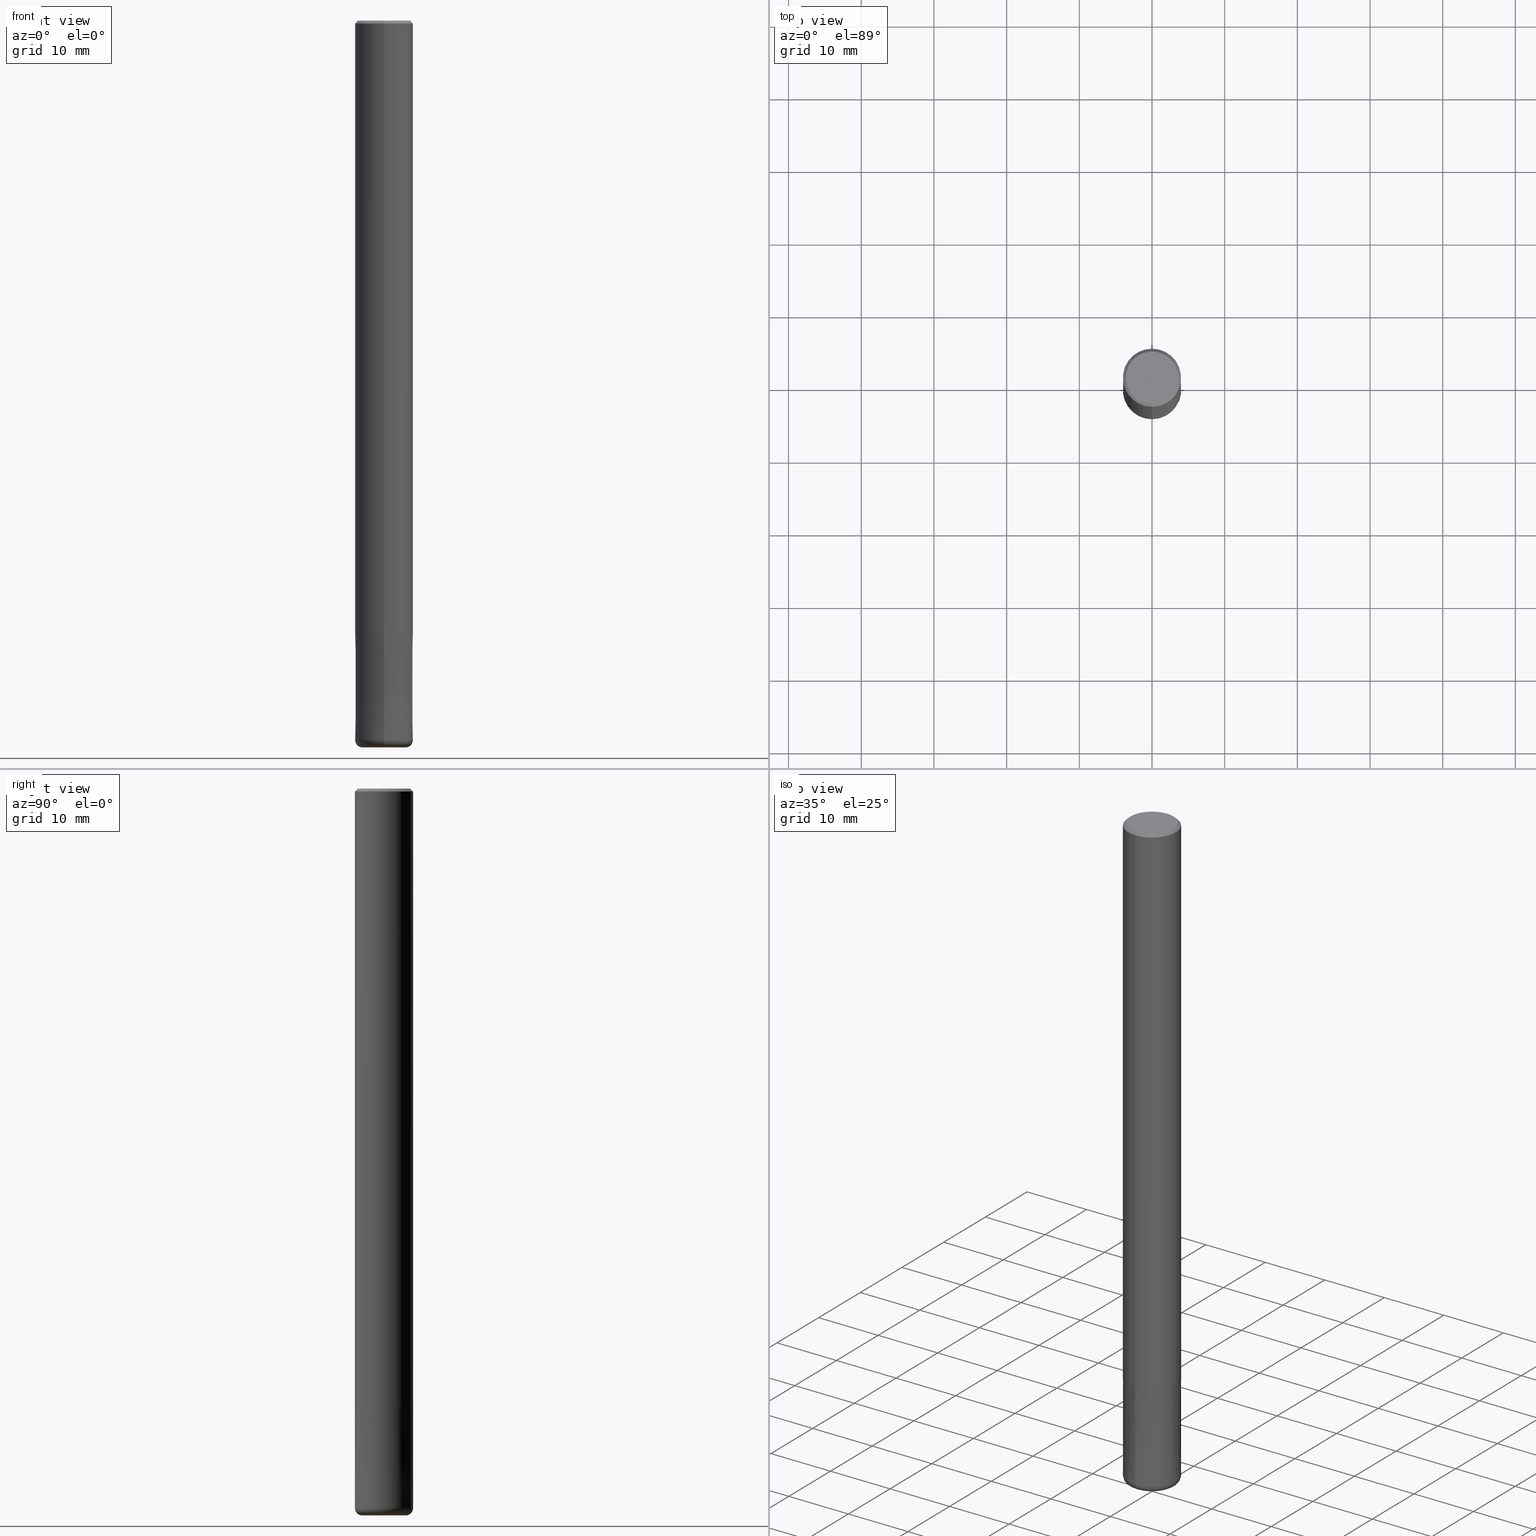
[diagram: canonical four-view strip — front | top / right | iso, engineering-drawing reading convention]
A machine part, canonical four-view strip (front | top / right | iso — engineering-drawing reading convention). The complete STEP part file that produces these views, byte-faithful:
ISO-10303-21;
HEADER;
FILE_DESCRIPTION(('no description'),'unknown implementation level');
FILE_NAME('CNRS4080-10-16-Huellk.stp','  ',('CIMSOURCE GmbH'),('CADClick - KiM GmbH - www.kimweb.de'),'unknown preprocess','ACIS','unknown authorization');
FILE_SCHEMA(('automotive_design'));
ENDSEC;
DATA;
#1=MECHANICAL_DESIGN_GEOMETRIC_PRESENTATION_REPRESENTATION(' ',(#10,#11,#12,#13,#14,#15,#16,#17,#18,#19,#20,#21,#22,#23,#24,#25,#26,#27,#28,#29,#30,#31,#32,#33,#34,#35,#36,#37,#38,#39,#40,#41,#42,#43,#44,#45,#46,#47,#48,#49,#50,#51,#52,#53),#6);
#2=PRODUCT_DEFINITION_CONTEXT('',#54,'design');
#3=APPLICATION_PROTOCOL_DEFINITION('INTERNATIONAL STANDARD','automotive_design',1994,#54);
#4=PRODUCT_CATEGORY_RELATIONSHIP('NONE','NONE',#55,#56);
#5=SHAPE_DEFINITION_REPRESENTATION(#57,#58);
#6= (GEOMETRIC_REPRESENTATION_CONTEXT(3)GLOBAL_UNCERTAINTY_ASSIGNED_CONTEXT((#61))GLOBAL_UNIT_ASSIGNED_CONTEXT((#63,#64,#65))REPRESENTATION_CONTEXT('NONE','WORKSPACE'));
#10=STYLED_ITEM('',(#67),#68);
#11=STYLED_ITEM('',(#69),#70);
#12=STYLED_ITEM('',(#71),#72);
#13=STYLED_ITEM('',(#73),#74);
#14=STYLED_ITEM('',(#75),#76);
#15=STYLED_ITEM('',(#77),#78);
#16=STYLED_ITEM('',(#79),#80);
#17=STYLED_ITEM('',(#81),#82);
#18=STYLED_ITEM('',(#83),#84);
#19=STYLED_ITEM('',(#85),#86);
#20=STYLED_ITEM('',(#87),#88);
#21=STYLED_ITEM('',(#89),#90);
#22=STYLED_ITEM('',(#91),#92);
#23=STYLED_ITEM('',(#93),#94);
#24=STYLED_ITEM('',(#95),#96);
#25=STYLED_ITEM('',(#97),#98);
#26=STYLED_ITEM('',(#99),#100);
#27=STYLED_ITEM('',(#101),#102);
#28=STYLED_ITEM('',(#103),#104);
#29=STYLED_ITEM('',(#105),#106);
#30=STYLED_ITEM('',(#107),#108);
#31=STYLED_ITEM('',(#109),#110);
#32=STYLED_ITEM('',(#111),#112);
#33=STYLED_ITEM('',(#113),#114);
#34=STYLED_ITEM('',(#115),#116);
#35=STYLED_ITEM('',(#117),#118);
#36=STYLED_ITEM('',(#119),#120);
#37=STYLED_ITEM('',(#121),#122);
#38=STYLED_ITEM('',(#123),#124);
#39=STYLED_ITEM('',(#125),#126);
#40=STYLED_ITEM('',(#127),#128);
#41=STYLED_ITEM('',(#129),#130);
#42=STYLED_ITEM('',(#131),#132);
#43=STYLED_ITEM('',(#133),#134);
#44=STYLED_ITEM('',(#135),#136);
#45=STYLED_ITEM('',(#137),#138);
#46=STYLED_ITEM('',(#139),#140);
#47=STYLED_ITEM('',(#141),#142);
#48=STYLED_ITEM('',(#143),#144);
#49=STYLED_ITEM('',(#145),#146);
#50=STYLED_ITEM('',(#147),#148);
#51=STYLED_ITEM('',(#149),#150);
#52=STYLED_ITEM('',(#151),#152);
#53=STYLED_ITEM('',(#153),#154);
#54=APPLICATION_CONTEXT(' ');
#55=PRODUCT_CATEGORY('part','NONE');
#56=PRODUCT_RELATED_PRODUCT_CATEGORY('detail',' ',(#155));
#57=PRODUCT_DEFINITION_SHAPE('NONE','NONE',#156);
#58=ADVANCED_BREP_SHAPE_REPRESENTATION('1',(#110,#157),#6);
#61=UNCERTAINTY_MEASURE_WITH_UNIT(LENGTH_MEASURE(1.0E-006),#63,'','');
#63= (CONVERSION_BASED_UNIT('MILLIMETRE',#160)LENGTH_UNIT()NAMED_UNIT(#163));
#64= (NAMED_UNIT(#165)PLANE_ANGLE_UNIT()SI_UNIT($,.RADIAN.));
#65= (NAMED_UNIT(#165)SOLID_ANGLE_UNIT()SI_UNIT($,.STERADIAN.));
#67=PRESENTATION_STYLE_ASSIGNMENT((#171));
#68=VERTEX_POINT('',#172);
#69=PRESENTATION_STYLE_ASSIGNMENT((#173));
#70=EDGE_CURVE('',#154,#142,#174,.T.);
#71=PRESENTATION_STYLE_ASSIGNMENT((#175));
#72=EDGE_CURVE('',#134,#108,#176,.T.);
#73=PRESENTATION_STYLE_ASSIGNMENT((#177));
#74=ADVANCED_FACE('',(#178),#179,.T.);
#75=PRESENTATION_STYLE_ASSIGNMENT((#180));
#76=EDGE_CURVE('',#108,#134,#181,.T.);
#77=PRESENTATION_STYLE_ASSIGNMENT((#182));
#78=EDGE_CURVE('',#68,#118,#183,.T.);
#79=PRESENTATION_STYLE_ASSIGNMENT((#184));
#80=EDGE_CURVE('',#118,#68,#185,.T.);
#81=PRESENTATION_STYLE_ASSIGNMENT((#186));
#82=EDGE_CURVE('',#124,#100,#187,.T.);
#83=PRESENTATION_STYLE_ASSIGNMENT((#188));
#84=VERTEX_POINT('',#189);
#85=PRESENTATION_STYLE_ASSIGNMENT((#190));
#86=EDGE_CURVE('',#152,#84,#191,.T.);
#87=PRESENTATION_STYLE_ASSIGNMENT((#192));
#88=ADVANCED_FACE('',(#193),#194,.T.);
#89=PRESENTATION_STYLE_ASSIGNMENT((#195));
#90=EDGE_CURVE('',#142,#154,#196,.T.);
#91=PRESENTATION_STYLE_ASSIGNMENT((#197));
#92=EDGE_CURVE('',#152,#148,#198,.T.);
#93=PRESENTATION_STYLE_ASSIGNMENT((#199));
#94=ADVANCED_FACE('',(#200),#201,.T.);
#95=PRESENTATION_STYLE_ASSIGNMENT((#202));
#96=EDGE_CURVE('',#142,#148,#203,.T.);
#97=PRESENTATION_STYLE_ASSIGNMENT((#204));
#98=EDGE_CURVE('',#122,#154,#205,.T.);
#99=PRESENTATION_STYLE_ASSIGNMENT((#206));
#100=VERTEX_POINT('',#207);
#101=PRESENTATION_STYLE_ASSIGNMENT((#208));
#102=EDGE_CURVE('',#100,#68,#209,.T.);
#103=PRESENTATION_STYLE_ASSIGNMENT((#210));
#104=EDGE_CURVE('',#100,#124,#211,.T.);
#105=PRESENTATION_STYLE_ASSIGNMENT((#212));
#106=ADVANCED_FACE('',(#213),#214,.T.);
#107=PRESENTATION_STYLE_ASSIGNMENT((#215));
#108=VERTEX_POINT('',#216);
#109=PRESENTATION_STYLE_ASSIGNMENT((#217));
#110=MANIFOLD_SOLID_BREP('1',#218);
#111=PRESENTATION_STYLE_ASSIGNMENT((#219));
#112=EDGE_CURVE('',#124,#134,#220,.T.);
#113=PRESENTATION_STYLE_ASSIGNMENT((#221));
#114=ADVANCED_FACE('',(#222),#223,.T.);
#115=PRESENTATION_STYLE_ASSIGNMENT((#224));
#116=ADVANCED_FACE('',(#225),#226,.T.);
#117=PRESENTATION_STYLE_ASSIGNMENT((#227));
#118=VERTEX_POINT('',#228);
#119=PRESENTATION_STYLE_ASSIGNMENT((#229));
#120=ADVANCED_FACE('',(#230),#231,.T.);
#121=PRESENTATION_STYLE_ASSIGNMENT((#232));
#122=VERTEX_POINT('',#233);
#123=PRESENTATION_STYLE_ASSIGNMENT((#234));
#124=VERTEX_POINT('',#235);
#125=PRESENTATION_STYLE_ASSIGNMENT((#236));
#126=EDGE_CURVE('',#84,#152,#237,.T.);
#127=PRESENTATION_STYLE_ASSIGNMENT((#238));
#128=EDGE_CURVE('',#148,#122,#239,.T.);
#129=PRESENTATION_STYLE_ASSIGNMENT((#240));
#130=EDGE_CURVE('',#122,#148,#241,.T.);
#131=PRESENTATION_STYLE_ASSIGNMENT((#242));
#132=EDGE_CURVE('',#108,#100,#243,.T.);
#133=PRESENTATION_STYLE_ASSIGNMENT((#244));
#134=VERTEX_POINT('',#245);
#135=PRESENTATION_STYLE_ASSIGNMENT((#246));
#136=ADVANCED_FACE('',(#247,#248),#249,.T.);
#137=PRESENTATION_STYLE_ASSIGNMENT((#250));
#138=ADVANCED_FACE('',(#251),#252,.T.);
#139=PRESENTATION_STYLE_ASSIGNMENT((#253));
#140=EDGE_CURVE('',#118,#124,#254,.T.);
#141=PRESENTATION_STYLE_ASSIGNMENT((#255));
#142=VERTEX_POINT('',#256);
#143=PRESENTATION_STYLE_ASSIGNMENT((#257));
#144=ADVANCED_FACE('',(#258),#259,.T.);
#145=PRESENTATION_STYLE_ASSIGNMENT((#260));
#146=EDGE_CURVE('',#122,#84,#261,.T.);
#147=PRESENTATION_STYLE_ASSIGNMENT((#262));
#148=VERTEX_POINT('',#263);
#149=PRESENTATION_STYLE_ASSIGNMENT((#264));
#150=ADVANCED_FACE('',(#265),#266,.T.);
#151=PRESENTATION_STYLE_ASSIGNMENT((#267));
#152=VERTEX_POINT('',#268);
#153=PRESENTATION_STYLE_ASSIGNMENT((#269));
#154=VERTEX_POINT('',#270);
#155=PRODUCT('1','1','PART-1-DESC',(#271));
#156=PRODUCT_DEFINITION('NONE','NONE',#272,#2);
#157=AXIS2_PLACEMENT_3D('',#273,#274,#275);
#160=LENGTH_MEASURE_WITH_UNIT(LENGTH_MEASURE(1.0),#276);
#163=DIMENSIONAL_EXPONENTS(1.0,0.0,0.0,0.0,0.0,0.0,0.0);
#165=DIMENSIONAL_EXPONENTS(0.0,0.0,0.0,0.0,0.0,0.0,0.0);
#171=POINT_STYLE(' ',#277,POSITIVE_LENGTH_MEASURE(1.0E-006),#278);
#172=CARTESIAN_POINT('',(0.0,4.0,-84.0));
#173=CURVE_STYLE('',#279,POSITIVE_LENGTH_MEASURE(1.0E-006),#280);
#174=CIRCLE('',#281,3.9999);
#175=CURVE_STYLE('',#282,POSITIVE_LENGTH_MEASURE(1.0E-006),#283);
#176=CIRCLE('',#284,3.6);
#177=SURFACE_STYLE_USAGE(.BOTH.,#285);
#178=FACE_OUTER_BOUND('',#286,.T.);
#179=CONICAL_SURFACE('',#287,3.8,0.785398163397441);
#180=CURVE_STYLE('',#288,POSITIVE_LENGTH_MEASURE(1.0E-006),#289);
#181=CIRCLE('',#290,3.6);
#182=CURVE_STYLE('',#291,POSITIVE_LENGTH_MEASURE(1.0E-006),#292);
#183=CIRCLE('',#293,4.0);
#184=CURVE_STYLE('',#294,POSITIVE_LENGTH_MEASURE(1.0E-006),#295);
#185=CIRCLE('',#296,4.0);
#186=CURVE_STYLE('',#297,POSITIVE_LENGTH_MEASURE(1.0E-006),#298);
#187=CIRCLE('',#299,4.0);
#188=POINT_STYLE(' ',#300,POSITIVE_LENGTH_MEASURE(1.0E-006),#301);
#189=CARTESIAN_POINT('',(3.67381906146713E-016,-3.0,-100.0));
#190=CURVE_STYLE('',#302,POSITIVE_LENGTH_MEASURE(1.0E-006),#303);
#191=CIRCLE('',#304,3.0);
#192=SURFACE_STYLE_USAGE(.BOTH.,#305);
#193=FACE_OUTER_BOUND('',#306,.T.);
#194=TOROIDAL_SURFACE('',#307,3.0,1.0);
#195=CURVE_STYLE('',#308,POSITIVE_LENGTH_MEASURE(1.0E-006),#309);
#196=CIRCLE('',#310,3.9999);
#197=CURVE_STYLE('',#311,POSITIVE_LENGTH_MEASURE(1.0E-006),#312);
#198=CIRCLE('',#313,1.0);
#199=SURFACE_STYLE_USAGE(.BOTH.,#314);
#200=FACE_OUTER_BOUND('',#315,.T.);
#201=PLANE('',#316);
#202=CURVE_STYLE('',#317,POSITIVE_LENGTH_MEASURE(1.0E-006),#318);
#203=LINE('',#319,#320);
#204=CURVE_STYLE('',#321,POSITIVE_LENGTH_MEASURE(1.0E-006),#322);
#205=LINE('',#323,#324);
#206=POINT_STYLE(' ',#325,POSITIVE_LENGTH_MEASURE(1.0E-006),#326);
#207=CARTESIAN_POINT('',(0.0,4.0,-0.400000000000006));
#208=CURVE_STYLE('',#327,POSITIVE_LENGTH_MEASURE(1.0E-006),#328);
#209=LINE('',#329,#330);
#210=CURVE_STYLE('',#331,POSITIVE_LENGTH_MEASURE(1.0E-006),#332);
#211=CIRCLE('',#333,4.0);
#212=SURFACE_STYLE_USAGE(.BOTH.,#334);
#213=FACE_OUTER_BOUND('',#335,.T.);
#214=CYLINDRICAL_SURFACE('',#336,4.0);
#215=POINT_STYLE(' ',#337,POSITIVE_LENGTH_MEASURE(1.0E-006),#338);
#216=CARTESIAN_POINT('',(0.0,3.6,0.0));
#217=SURFACE_STYLE_USAGE(.BOTH.,#339);
#218=CLOSED_SHELL('',(#144,#116,#106,#74,#136,#150,#120,#138,#114,#88,#94));
#219=CURVE_STYLE('',#340,POSITIVE_LENGTH_MEASURE(1.0E-006),#341);
#220=LINE('',#342,#343);
#221=SURFACE_STYLE_USAGE(.BOTH.,#344);
#222=FACE_OUTER_BOUND('',#345,.T.);
#223=CONICAL_SURFACE('',#346,3.99995,6.66666666658197E-006);
#224=SURFACE_STYLE_USAGE(.BOTH.,#347);
#225=FACE_OUTER_BOUND('',#348,.T.);
#226=CONICAL_SURFACE('',#349,3.99995,6.66666666658197E-006);
#227=POINT_STYLE(' ',#350,POSITIVE_LENGTH_MEASURE(1.0E-006),#351);
#228=CARTESIAN_POINT('',(4.89842541528951E-016,-4.0,-84.0));
#229=SURFACE_STYLE_USAGE(.BOTH.,#352);
#230=FACE_OUTER_BOUND('',#353,.T.);
#231=CONICAL_SURFACE('',#354,3.8,0.785398163397441);
#232=POINT_STYLE(' ',#355,POSITIVE_LENGTH_MEASURE(1.0E-006),#356);
#233=CARTESIAN_POINT('',(4.89842541528951E-016,-4.0,-99.0));
#234=POINT_STYLE(' ',#357,POSITIVE_LENGTH_MEASURE(1.0E-006),#358);
#235=CARTESIAN_POINT('',(4.89842541528951E-016,-4.0,-0.400000000000006));
#236=CURVE_STYLE('',#359,POSITIVE_LENGTH_MEASURE(1.0E-006),#360);
#237=CIRCLE('',#361,3.0);
#238=CURVE_STYLE('',#362,POSITIVE_LENGTH_MEASURE(1.0E-006),#363);
#239=CIRCLE('',#364,4.0);
#240=CURVE_STYLE('',#365,POSITIVE_LENGTH_MEASURE(1.0E-006),#366);
#241=CIRCLE('',#367,4.0);
#242=CURVE_STYLE('',#368,POSITIVE_LENGTH_MEASURE(1.0E-006),#369);
#243=LINE('',#370,#371);
#244=POINT_STYLE(' ',#372,POSITIVE_LENGTH_MEASURE(1.0E-006),#373);
#245=CARTESIAN_POINT('',(4.40858287376056E-016,-3.6,0.0));
#246=SURFACE_STYLE_USAGE(.BOTH.,#374);
#247=FACE_OUTER_BOUND('',#375,.T.);
#248=FACE_BOUND('',#376,.T.);
#249=PLANE('',#377);
#250=SURFACE_STYLE_USAGE(.BOTH.,#378);
#251=FACE_OUTER_BOUND('',#379,.T.);
#252=CYLINDRICAL_SURFACE('',#380,4.0);
#253=CURVE_STYLE('',#381,POSITIVE_LENGTH_MEASURE(1.0E-006),#382);
#254=LINE('',#383,#384);
#255=POINT_STYLE(' ',#385,POSITIVE_LENGTH_MEASURE(1.0E-006),#386);
#256=CARTESIAN_POINT('',(0.0,3.9999,-84.0));
#257=SURFACE_STYLE_USAGE(.BOTH.,#387);
#258=FACE_OUTER_BOUND('',#388,.T.);
#259=TOROIDAL_SURFACE('',#389,3.0,1.0);
#260=CURVE_STYLE('',#390,POSITIVE_LENGTH_MEASURE(1.0E-006),#391);
#261=CIRCLE('',#392,1.0);
#262=POINT_STYLE(' ',#393,POSITIVE_LENGTH_MEASURE(1.0E-006),#394);
#263=CARTESIAN_POINT('',(0.0,4.0,-99.0));
#264=SURFACE_STYLE_USAGE(.BOTH.,#395);
#265=FACE_OUTER_BOUND('',#396,.T.);
#266=PLANE('',#397);
#267=POINT_STYLE(' ',#398,POSITIVE_LENGTH_MEASURE(1.0E-006),#399);
#268=CARTESIAN_POINT('',(0.0,3.0,-100.0));
#269=POINT_STYLE(' ',#400,POSITIVE_LENGTH_MEASURE(1.0E-006),#401);
#270=CARTESIAN_POINT('',(4.89830295465413E-016,-3.9999,-84.0));
#271=PRODUCT_CONTEXT('',#54,'mechanical');
#272=PRODUCT_DEFINITION_FORMATION_WITH_SPECIFIED_SOURCE(' ','NONE',#155,.NOT_KNOWN.);
#273=CARTESIAN_POINT('',(0.0,0.0,0.0));
#274=DIRECTION('',(0.0,0.0,1.0));
#275=DIRECTION('',(1.0,0.0,0.0));
#276= (NAMED_UNIT(#163)LENGTH_UNIT()SI_UNIT(.MILLI.,.METRE.));
#277=PRE_DEFINED_MARKER('');
#278=COLOUR_RGB('',0.498039215803146,0.498039215803146,0.498039215803146);
#279=DRAUGHTING_PRE_DEFINED_CURVE_FONT('continuous');
#280=COLOUR_RGB('',0.800000011920929,0.800000011920929,0.800000011920929);
#281=AXIS2_PLACEMENT_3D('',#403,#404,#405);
#282=DRAUGHTING_PRE_DEFINED_CURVE_FONT('continuous');
#283=COLOUR_RGB('',0.498039215803146,0.498039215803146,0.498039215803146);
#284=AXIS2_PLACEMENT_3D('',#406,#407,#408);
#285=SURFACE_SIDE_STYLE('',(#409));
#286=EDGE_LOOP('',(#410,#411,#412,#413));
#287=AXIS2_PLACEMENT_3D('',#414,#415,#416);
#288=DRAUGHTING_PRE_DEFINED_CURVE_FONT('continuous');
#289=COLOUR_RGB('',0.498039215803146,0.498039215803146,0.498039215803146);
#290=AXIS2_PLACEMENT_3D('',#417,#418,#419);
#291=DRAUGHTING_PRE_DEFINED_CURVE_FONT('continuous');
#292=COLOUR_RGB('',0.498039215803146,0.498039215803146,0.498039215803146);
#293=AXIS2_PLACEMENT_3D('',#420,#421,#422);
#294=DRAUGHTING_PRE_DEFINED_CURVE_FONT('continuous');
#295=COLOUR_RGB('',0.498039215803146,0.498039215803146,0.498039215803146);
#296=AXIS2_PLACEMENT_3D('',#423,#424,#425);
#297=DRAUGHTING_PRE_DEFINED_CURVE_FONT('continuous');
#298=COLOUR_RGB('',0.498039215803146,0.498039215803146,0.498039215803146);
#299=AXIS2_PLACEMENT_3D('',#426,#427,#428);
#300=PRE_DEFINED_MARKER('');
#301=COLOUR_RGB('',0.800000011920929,0.800000011920929,0.800000011920929);
#302=DRAUGHTING_PRE_DEFINED_CURVE_FONT('continuous');
#303=COLOUR_RGB('',0.800000011920929,0.800000011920929,0.800000011920929);
#304=AXIS2_PLACEMENT_3D('',#429,#430,#431);
#305=SURFACE_SIDE_STYLE('',(#432));
#306=EDGE_LOOP('',(#433,#434,#435,#436));
#307=AXIS2_PLACEMENT_3D('',#437,#438,#439);
#308=DRAUGHTING_PRE_DEFINED_CURVE_FONT('continuous');
#309=COLOUR_RGB('',0.800000011920929,0.800000011920929,0.800000011920929);
#310=AXIS2_PLACEMENT_3D('',#440,#441,#442);
#311=DRAUGHTING_PRE_DEFINED_CURVE_FONT('continuous');
#312=COLOUR_RGB('',0.800000011920929,0.800000011920929,0.800000011920929);
#313=AXIS2_PLACEMENT_3D('',#443,#444,#445);
#314=SURFACE_SIDE_STYLE('',(#446));
#315=EDGE_LOOP('',(#447,#448));
#316=AXIS2_PLACEMENT_3D('',#449,#450,#451);
#317=DRAUGHTING_PRE_DEFINED_CURVE_FONT('continuous');
#318=COLOUR_RGB('',0.800000011920929,0.800000011920929,0.800000011920929);
#319=CARTESIAN_POINT('',(-4.89836418497182E-016,3.99995,-91.5));
#320=VECTOR('',#452,1.0);
#321=DRAUGHTING_PRE_DEFINED_CURVE_FONT('continuous');
#322=COLOUR_RGB('',0.800000011920929,0.800000011920929,0.800000011920929);
#323=CARTESIAN_POINT('',(4.89836418497182E-016,-3.99995,-91.5));
#324=VECTOR('',#453,1.0);
#325=PRE_DEFINED_MARKER('');
#326=COLOUR_RGB('',0.498039215803146,0.498039215803146,0.498039215803146);
#327=DRAUGHTING_PRE_DEFINED_CURVE_FONT('continuous');
#328=COLOUR_RGB('',0.498039215803146,0.498039215803146,0.498039215803146);
#329=CARTESIAN_POINT('',(-4.89842541528951E-016,4.0,-42.2));
#330=VECTOR('',#454,1.0);
#331=DRAUGHTING_PRE_DEFINED_CURVE_FONT('continuous');
#332=COLOUR_RGB('',0.498039215803146,0.498039215803146,0.498039215803146);
#333=AXIS2_PLACEMENT_3D('',#455,#456,#457);
#334=SURFACE_SIDE_STYLE('',(#458));
#335=EDGE_LOOP('',(#459,#460,#461,#462));
#336=AXIS2_PLACEMENT_3D('',#463,#464,#465);
#337=PRE_DEFINED_MARKER('');
#338=COLOUR_RGB('',0.498039215803146,0.498039215803146,0.498039215803146);
#339=SURFACE_SIDE_STYLE('',(#466));
#340=DRAUGHTING_PRE_DEFINED_CURVE_FONT('continuous');
#341=COLOUR_RGB('',0.498039215803146,0.498039215803146,0.498039215803146);
#342=CARTESIAN_POINT('',(4.65350414452503E-016,-3.8,-0.200000000000003));
#343=VECTOR('',#467,1.0);
#344=SURFACE_SIDE_STYLE('',(#468));
#345=EDGE_LOOP('',(#469,#470,#471,#472));
#346=AXIS2_PLACEMENT_3D('',#473,#474,#475);
#347=SURFACE_SIDE_STYLE('',(#476));
#348=EDGE_LOOP('',(#477,#478,#479,#480));
#349=AXIS2_PLACEMENT_3D('',#481,#482,#483);
#350=PRE_DEFINED_MARKER('');
#351=COLOUR_RGB('',0.498039215803146,0.498039215803146,0.498039215803146);
#352=SURFACE_SIDE_STYLE('',(#484));
#353=EDGE_LOOP('',(#485,#486,#487,#488));
#354=AXIS2_PLACEMENT_3D('',#489,#490,#491);
#355=PRE_DEFINED_MARKER('');
#356=COLOUR_RGB('',0.800000011920929,0.800000011920929,0.800000011920929);
#357=PRE_DEFINED_MARKER('');
#358=COLOUR_RGB('',0.498039215803146,0.498039215803146,0.498039215803146);
#359=DRAUGHTING_PRE_DEFINED_CURVE_FONT('continuous');
#360=COLOUR_RGB('',0.800000011920929,0.800000011920929,0.800000011920929);
#361=AXIS2_PLACEMENT_3D('',#492,#493,#494);
#362=DRAUGHTING_PRE_DEFINED_CURVE_FONT('continuous');
#363=COLOUR_RGB('',0.800000011920929,0.800000011920929,0.800000011920929);
#364=AXIS2_PLACEMENT_3D('',#495,#496,#497);
#365=DRAUGHTING_PRE_DEFINED_CURVE_FONT('continuous');
#366=COLOUR_RGB('',0.800000011920929,0.800000011920929,0.800000011920929);
#367=AXIS2_PLACEMENT_3D('',#498,#499,#500);
#368=DRAUGHTING_PRE_DEFINED_CURVE_FONT('continuous');
#369=COLOUR_RGB('',0.498039215803146,0.498039215803146,0.498039215803146);
#370=CARTESIAN_POINT('',(-4.65350414452503E-016,3.8,-0.200000000000003));
#371=VECTOR('',#501,1.0);
#372=PRE_DEFINED_MARKER('');
#373=COLOUR_RGB('',0.498039215803146,0.498039215803146,0.498039215803146);
#374=SURFACE_SIDE_STYLE('',(#502));
#375=EDGE_LOOP('',(#503,#504));
#376=EDGE_LOOP('',(#505,#506));
#377=AXIS2_PLACEMENT_3D('',#507,#508,#509);
#378=SURFACE_SIDE_STYLE('',(#510));
#379=EDGE_LOOP('',(#511,#512,#513,#514));
#380=AXIS2_PLACEMENT_3D('',#515,#516,#517);
#381=DRAUGHTING_PRE_DEFINED_CURVE_FONT('continuous');
#382=COLOUR_RGB('',0.498039215803146,0.498039215803146,0.498039215803146);
#383=CARTESIAN_POINT('',(4.89842541528951E-016,-4.0,-42.2));
#384=VECTOR('',#518,1.0);
#385=PRE_DEFINED_MARKER('');
#386=COLOUR_RGB('',0.800000011920929,0.800000011920929,0.800000011920929);
#387=SURFACE_SIDE_STYLE('',(#519));
#388=EDGE_LOOP('',(#520,#521,#522,#523));
#389=AXIS2_PLACEMENT_3D('',#524,#525,#526);
#390=DRAUGHTING_PRE_DEFINED_CURVE_FONT('continuous');
#391=COLOUR_RGB('',0.800000011920929,0.800000011920929,0.800000011920929);
#392=AXIS2_PLACEMENT_3D('',#527,#528,#529);
#393=PRE_DEFINED_MARKER('');
#394=COLOUR_RGB('',0.800000011920929,0.800000011920929,0.800000011920929);
#395=SURFACE_SIDE_STYLE('',(#530));
#396=EDGE_LOOP('',(#531,#532));
#397=AXIS2_PLACEMENT_3D('',#533,#534,#535);
#398=PRE_DEFINED_MARKER('');
#399=COLOUR_RGB('',0.800000011920929,0.800000011920929,0.800000011920929);
#400=PRE_DEFINED_MARKER('');
#401=COLOUR_RGB('',0.800000011920929,0.800000011920929,0.800000011920929);
#403=CARTESIAN_POINT('',(0.0,0.0,-84.0));
#404=DIRECTION('',(0.0,0.0,-1.0));
#405=DIRECTION('',(0.0,1.0,0.0));
#406=CARTESIAN_POINT('',(0.0,0.0,0.0));
#407=DIRECTION('',(0.0,0.0,-1.0));
#408=DIRECTION('',(0.0,1.0,0.0));
#409=SURFACE_STYLE_FILL_AREA(#536);
#410=ORIENTED_EDGE('',*,*,#132,.F.);
#411=ORIENTED_EDGE('',*,*,#76,.T.);
#412=ORIENTED_EDGE('',*,*,#112,.F.);
#413=ORIENTED_EDGE('',*,*,#104,.F.);
#414=CARTESIAN_POINT('',(0.0,0.0,-0.200000000000003));
#415=DIRECTION('',(0.0,-0.0,-1.0));
#416=DIRECTION('',(0.0,1.0,0.0));
#417=CARTESIAN_POINT('',(0.0,0.0,0.0));
#418=DIRECTION('',(0.0,0.0,-1.0));
#419=DIRECTION('',(0.0,1.0,0.0));
#420=CARTESIAN_POINT('',(0.0,0.0,-84.0));
#421=DIRECTION('',(0.0,0.0,-1.0));
#422=DIRECTION('',(0.0,1.0,0.0));
#423=CARTESIAN_POINT('',(0.0,0.0,-84.0));
#424=DIRECTION('',(0.0,0.0,-1.0));
#425=DIRECTION('',(0.0,1.0,0.0));
#426=CARTESIAN_POINT('',(0.0,0.0,-0.400000000000006));
#427=DIRECTION('',(0.0,0.0,-1.0));
#428=DIRECTION('',(0.0,1.0,0.0));
#429=CARTESIAN_POINT('',(0.0,0.0,-100.0));
#430=DIRECTION('',(0.0,0.0,-1.0));
#431=DIRECTION('',(0.0,1.0,0.0));
#432=SURFACE_STYLE_FILL_AREA(#537);
#433=ORIENTED_EDGE('',*,*,#146,.T.);
#434=ORIENTED_EDGE('',*,*,#86,.F.);
#435=ORIENTED_EDGE('',*,*,#92,.T.);
#436=ORIENTED_EDGE('',*,*,#128,.T.);
#437=CARTESIAN_POINT('',(0.0,0.0,-99.0));
#438=DIRECTION('',(0.0,0.0,-1.0));
#439=DIRECTION('',(0.0,-1.0,0.0));
#440=CARTESIAN_POINT('',(0.0,0.0,-84.0));
#441=DIRECTION('',(0.0,0.0,-1.0));
#442=DIRECTION('',(0.0,1.0,0.0));
#443=CARTESIAN_POINT('',(-3.67381906146713E-016,3.0,-99.0));
#444=DIRECTION('',(1.0,1.22460635382238E-016,0.0));
#445=DIRECTION('',(-1.22460635382238E-016,1.0,0.0));
#446=SURFACE_STYLE_FILL_AREA(#538);
#447=ORIENTED_EDGE('',*,*,#86,.T.);
#448=ORIENTED_EDGE('',*,*,#126,.T.);
#449=CARTESIAN_POINT('',(0.0,1.5,-100.0));
#450=DIRECTION('',(0.0,0.0,-1.0));
#451=DIRECTION('',(0.0,1.0,0.0));
#452=DIRECTION('',(-8.16404235865165E-022,6.66666666653259E-006,-0.999999999977778));
#453=DIRECTION('',(-8.16404235865165E-022,6.66666666653259E-006,0.999999999977778));
#454=DIRECTION('',(0.0,0.0,-1.0));
#455=CARTESIAN_POINT('',(0.0,0.0,-0.400000000000006));
#456=DIRECTION('',(0.0,0.0,-1.0));
#457=DIRECTION('',(0.0,1.0,0.0));
#458=SURFACE_STYLE_FILL_AREA(#539);
#459=ORIENTED_EDGE('',*,*,#102,.F.);
#460=ORIENTED_EDGE('',*,*,#104,.T.);
#461=ORIENTED_EDGE('',*,*,#140,.F.);
#462=ORIENTED_EDGE('',*,*,#78,.F.);
#463=CARTESIAN_POINT('',(0.0,0.0,-42.2));
#464=DIRECTION('',(-0.0,-0.0,1.0));
#465=DIRECTION('',(0.0,1.0,0.0));
#466=SURFACE_STYLE_FILL_AREA(#540);
#467=DIRECTION('',(-8.65927457071929E-017,0.707106781186542,0.707106781186553));
#468=SURFACE_STYLE_FILL_AREA(#541);
#469=ORIENTED_EDGE('',*,*,#96,.T.);
#470=ORIENTED_EDGE('',*,*,#130,.F.);
#471=ORIENTED_EDGE('',*,*,#98,.T.);
#472=ORIENTED_EDGE('',*,*,#70,.T.);
#473=CARTESIAN_POINT('',(0.0,0.0,-91.5));
#474=DIRECTION('',(0.0,-0.0,-1.0));
#475=DIRECTION('',(0.0,1.0,0.0));
#476=SURFACE_STYLE_FILL_AREA(#542);
#477=ORIENTED_EDGE('',*,*,#96,.F.);
#478=ORIENTED_EDGE('',*,*,#90,.T.);
#479=ORIENTED_EDGE('',*,*,#98,.F.);
#480=ORIENTED_EDGE('',*,*,#128,.F.);
#481=CARTESIAN_POINT('',(0.0,0.0,-91.5));
#482=DIRECTION('',(0.0,-0.0,-1.0));
#483=DIRECTION('',(0.0,1.0,0.0));
#484=SURFACE_STYLE_FILL_AREA(#543);
#485=ORIENTED_EDGE('',*,*,#132,.T.);
#486=ORIENTED_EDGE('',*,*,#82,.F.);
#487=ORIENTED_EDGE('',*,*,#112,.T.);
#488=ORIENTED_EDGE('',*,*,#72,.T.);
#489=CARTESIAN_POINT('',(0.0,0.0,-0.200000000000003));
#490=DIRECTION('',(0.0,-0.0,-1.0));
#491=DIRECTION('',(0.0,1.0,0.0));
#492=CARTESIAN_POINT('',(0.0,0.0,-100.0));
#493=DIRECTION('',(0.0,0.0,-1.0));
#494=DIRECTION('',(0.0,1.0,0.0));
#495=CARTESIAN_POINT('',(0.0,0.0,-99.0));
#496=DIRECTION('',(0.0,0.0,-1.0));
#497=DIRECTION('',(0.0,1.0,0.0));
#498=CARTESIAN_POINT('',(0.0,0.0,-99.0));
#499=DIRECTION('',(0.0,0.0,-1.0));
#500=DIRECTION('',(0.0,1.0,0.0));
#501=DIRECTION('',(-8.65927457071929E-017,0.707106781186542,-0.707106781186553));
#502=SURFACE_STYLE_FILL_AREA(#544);
#503=ORIENTED_EDGE('',*,*,#78,.T.);
#504=ORIENTED_EDGE('',*,*,#80,.T.);
#505=ORIENTED_EDGE('',*,*,#90,.F.);
#506=ORIENTED_EDGE('',*,*,#70,.F.);
#507=CARTESIAN_POINT('',(0.0,2.0,-84.0));
#508=DIRECTION('',(0.0,0.0,-1.0));
#509=DIRECTION('',(0.0,1.0,0.0));
#510=SURFACE_STYLE_FILL_AREA(#545);
#511=ORIENTED_EDGE('',*,*,#102,.T.);
#512=ORIENTED_EDGE('',*,*,#80,.F.);
#513=ORIENTED_EDGE('',*,*,#140,.T.);
#514=ORIENTED_EDGE('',*,*,#82,.T.);
#515=CARTESIAN_POINT('',(0.0,0.0,-42.2));
#516=DIRECTION('',(-0.0,-0.0,1.0));
#517=DIRECTION('',(0.0,1.0,0.0));
#518=DIRECTION('',(-0.0,-0.0,1.0));
#519=SURFACE_STYLE_FILL_AREA(#546);
#520=ORIENTED_EDGE('',*,*,#146,.F.);
#521=ORIENTED_EDGE('',*,*,#130,.T.);
#522=ORIENTED_EDGE('',*,*,#92,.F.);
#523=ORIENTED_EDGE('',*,*,#126,.F.);
#524=CARTESIAN_POINT('',(0.0,0.0,-99.0));
#525=DIRECTION('',(0.0,0.0,-1.0));
#526=DIRECTION('',(0.0,-1.0,0.0));
#527=CARTESIAN_POINT('',(3.67381906146713E-016,-3.0,-99.0));
#528=DIRECTION('',(1.0,1.22460635382238E-016,0.0));
#529=DIRECTION('',(1.22460635382238E-016,-1.0,-0.0));
#530=SURFACE_STYLE_FILL_AREA(#547);
#531=ORIENTED_EDGE('',*,*,#76,.F.);
#532=ORIENTED_EDGE('',*,*,#72,.F.);
#533=CARTESIAN_POINT('',(0.0,1.8,0.0));
#534=DIRECTION('',(-0.0,0.0,1.0));
#535=DIRECTION('',(0.0,-1.0,0.0));
#536=FILL_AREA_STYLE('',(#548));
#537=FILL_AREA_STYLE('',(#549));
#538=FILL_AREA_STYLE('',(#550));
#539=FILL_AREA_STYLE('',(#551));
#540=FILL_AREA_STYLE('',(#552));
#541=FILL_AREA_STYLE('',(#553));
#542=FILL_AREA_STYLE('',(#554));
#543=FILL_AREA_STYLE('',(#555));
#544=FILL_AREA_STYLE('',(#556));
#545=FILL_AREA_STYLE('',(#557));
#546=FILL_AREA_STYLE('',(#558));
#547=FILL_AREA_STYLE('',(#559));
#548=FILL_AREA_STYLE_COLOUR('',#560);
#549=FILL_AREA_STYLE_COLOUR('',#561);
#550=FILL_AREA_STYLE_COLOUR('',#562);
#551=FILL_AREA_STYLE_COLOUR('',#563);
#552=FILL_AREA_STYLE_COLOUR('',#564);
#553=FILL_AREA_STYLE_COLOUR('',#565);
#554=FILL_AREA_STYLE_COLOUR('',#566);
#555=FILL_AREA_STYLE_COLOUR('',#567);
#556=FILL_AREA_STYLE_COLOUR('',#568);
#557=FILL_AREA_STYLE_COLOUR('',#569);
#558=FILL_AREA_STYLE_COLOUR('',#570);
#559=FILL_AREA_STYLE_COLOUR('',#571);
#560=COLOUR_RGB('',0.498039215803146,0.498039215803146,0.498039215803146);
#561=COLOUR_RGB('',0.800000011920929,0.800000011920929,0.800000011920929);
#562=COLOUR_RGB('',0.800000011920929,0.800000011920929,0.800000011920929);
#563=COLOUR_RGB('',0.498039215803146,0.498039215803146,0.498039215803146);
#564=COLOUR_RGB('',0.800000011920929,0.800000011920929,0.800000011920929);
#565=COLOUR_RGB('',0.800000011920929,0.800000011920929,0.800000011920929);
#566=COLOUR_RGB('',0.800000011920929,0.800000011920929,0.800000011920929);
#567=COLOUR_RGB('',0.498039215803146,0.498039215803146,0.498039215803146);
#568=COLOUR_RGB('',0.498039215803146,0.498039215803146,0.498039215803146);
#569=COLOUR_RGB('',0.498039215803146,0.498039215803146,0.498039215803146);
#570=COLOUR_RGB('',0.800000011920929,0.800000011920929,0.800000011920929);
#571=COLOUR_RGB('',0.498039215803146,0.498039215803146,0.498039215803146);
#572=AXIS2_PLACEMENT_3D('PCS',#573,#574,#575);
#573=CARTESIAN_POINT('',(0.0,0.0,0.0));
#574=DIRECTION('',(0.0,0.0,1.0));
#575=DIRECTION('',(1.0,0.0,0.0));
#576=AXIS2_PLACEMENT_3D('CIP',#577,#578,#579);
#577=CARTESIAN_POINT('',(0.0,0.0,-100.0));
#578=DIRECTION('',(0.0,0.0,1.0));
#579=DIRECTION('',(1.0,0.0,0.0));
#580=AXIS2_PLACEMENT_3D('CRP',#581,#582,#583);
#581=CARTESIAN_POINT('',(-4.0,0.0,-100.0));
#582=DIRECTION('',(0.0,0.0,1.0));
#583=DIRECTION('',(1.0,0.0,0.0));
#584=AXIS2_PLACEMENT_3D('MCS',#585,#586,#587);
#585=CARTESIAN_POINT('',(0.0,0.0,-84.0));
#586=DIRECTION('',(0.0,0.0,1.0));
#587=DIRECTION('',(1.0,0.0,0.0));
#588=CONSTRUCTIVE_GEOMETRY_REPRESENTATION_RELATIONSHIP('coordinate systems',$,#58,#589);
#589=CONSTRUCTIVE_GEOMETRY_REPRESENTATION('coordinate systems',(#572,#576,#580,#584),#6);
ENDSEC;
END-ISO-10303-21;
